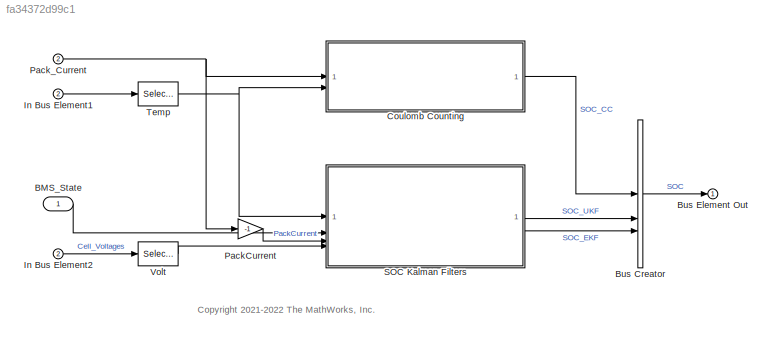
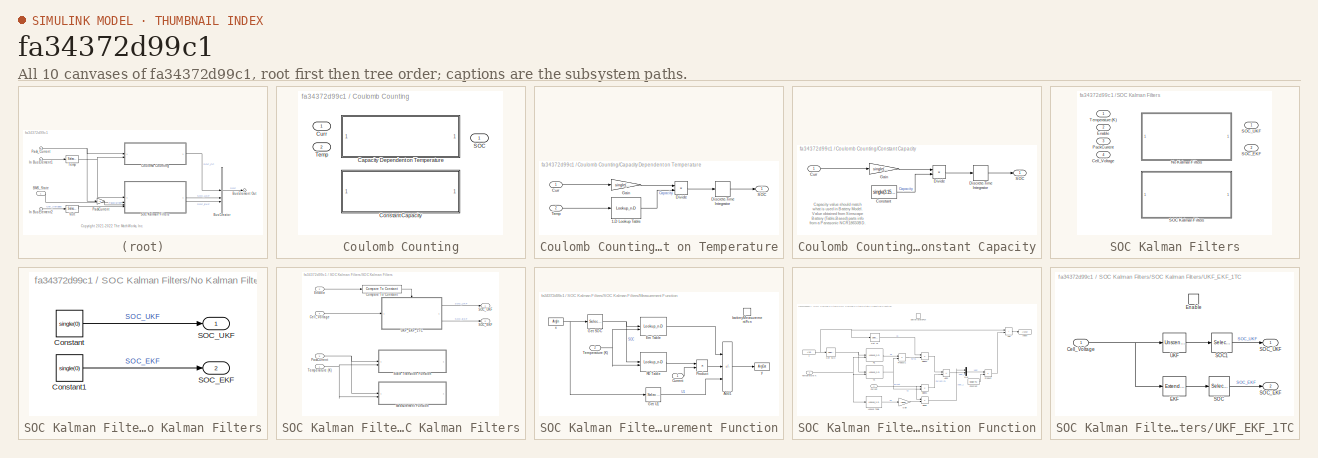
[diagram: thumbnail index - all 10 canvases of the model, root first then tree order]
MODEL slx_fa34372d99c1
KIND model
CONFIG AbsTol = auto
CONFIG EnableMultiTasking = off
CONFIG FixedStep = 0.1
CONFIG MaxStep = auto
CONFIG MinStep = auto
CONFIG RelTol = 1e-3
CONFIG SampleTimeConstraint = Unconstrained
CONFIG SolverName = FixedStepDiscrete
CONFIG StartTime = 0.0
CONFIG StopTime = 10000
WORKSPACE source: mxarray member
WORKSPACE Battery: object (value not decoded)
WORKSPACE Ts: Simulink.Parameter (value not decoded)
BLOCK [Inport] BMS_State
BLOCK [BusCreator] Bus Creator
  DisplayOption = bar
  InheritFromInputs = on
  Inputs = 3
BLOCK [Outport] Bus Element Out
BLOCK [SubSystem] Coulomb Counting
  LabelModeActiveChoice = Constant Capacity
  Variant = on
  VariantControl = SocAlgo==1
  VariantControlMode = label
BLOCK [SubSystem] Coulomb Counting/Capacity Dependent on Temperature
  VariantControl = Capacity Dependent on Temperature
BLOCK [Lookup_n-D] Coulomb Counting/Capacity Dependent on Temperature/1-D Lookup Table
  BreakpointsForDimension1 = single(Battery(1).Temperature_LUT)
  InputPortMap = u0
  InternalRulePriority = Speed
  NumberOfTableDimensions = 1
  RndMeth = Simplest
  Table = single(Battery(1).Capacity_LUT)*PlntBattModNumCellPar
BLOCK [Inport] Coulomb Counting/Capacity Dependent on Temperature/Curr
BLOCK [DiscreteIntegrator] Coulomb Counting/Capacity Dependent on Temperature/Discrete-Time Integrator
  ICPrevOutput = DiscIntNeverNeededParam
  ICPrevScaledInput = DiscIntNeverNeededParam
  InitialCondition = single(PlntBattSocInit)
  InitialConditionSetting = Auto
  LimitOutput = on
  LowerSaturationLimit = 0
  SampleTime = -1
  UpperSaturationLimit = 1
BLOCK [Product] Coulomb Counting/Capacity Dependent on Temperature/Divide
  Inputs = */
  NameLocation = top
BLOCK [Gain] Coulomb Counting/Capacity Dependent on Temperature/Gain
  Gain = single(1/3600)
BLOCK [Outport] Coulomb Counting/Capacity Dependent on Temperature/SOC
  VectorParamsAs1DForOutWhenUnconnected = off
BLOCK [Inport] Coulomb Counting/Capacity Dependent on Temperature/Temp
  Port = 2
BLOCK [SubSystem] Coulomb Counting/Constant Capacity
  VariantControl = Constant Capacity
BLOCK [Constant] Coulomb Counting/Constant Capacity/Constant
  SampleTime = -1
  Value = single(3.153*PlntBattModNumCellPar)
BLOCK [Inport] Coulomb Counting/Constant Capacity/Curr
BLOCK [DiscreteIntegrator] Coulomb Counting/Constant Capacity/Discrete-Time Integrator
  ICPrevOutput = DiscIntNeverNeededParam
  ICPrevScaledInput = DiscIntNeverNeededParam
  InitialCondition = single(PlntBattSocInit)
  InitialConditionSetting = Auto
  LimitOutput = on
  LowerSaturationLimit = 0
  SampleTime = -1
  UpperSaturationLimit = 1
BLOCK [Product] Coulomb Counting/Constant Capacity/Divide
  Inputs = */
  NameLocation = top
BLOCK [Gain] Coulomb Counting/Constant Capacity/Gain
  Gain = single(1/3600)
BLOCK [Outport] Coulomb Counting/Constant Capacity/SOC
  VectorParamsAs1DForOutWhenUnconnected = off
BLOCK [Inport] Coulomb Counting/Curr
BLOCK [Outport] Coulomb Counting/SOC
BLOCK [Inport] Coulomb Counting/Temp
  Port = 2
BLOCK [Inport] In Bus Element1
  Port = 2
BLOCK [Inport] In Bus Element2
  Port = 2
BLOCK [Gain] PackCurrent
  Gain = -1
BLOCK [Inport] Pack_Current
  Port = 2
BLOCK [SubSystem] SOC Kalman Filters
  LabelModeActiveChoice = No Kalman Filters
  Variant = on
  VariantControl = Choice
  VariantControlMode = label
BLOCK [Inport] SOC Kalman Filters/Cell_Voltage
  Port = 4
BLOCK [Inport] SOC Kalman Filters/Enable
  Port = 2
BLOCK [SubSystem] SOC Kalman Filters/No Kalman Filters
  VariantControl = No Kalman Filters
BLOCK [Constant] SOC Kalman Filters/No Kalman Filters/Constant
  SampleTime = -1
  Value = single(0)
BLOCK [Constant] SOC Kalman Filters/No Kalman Filters/Constant1
  SampleTime = -1
  Value = single(0)
BLOCK [Outport] SOC Kalman Filters/No Kalman Filters/SOC_EKF
  Port = 2
BLOCK [Outport] SOC Kalman Filters/No Kalman Filters/SOC_UKF
BLOCK [Inport] SOC Kalman Filters/PackCurrent
  Port = 3
BLOCK [SubSystem] SOC Kalman Filters/SOC Kalman Filters
  InitFcn = if ~license('test', 'identification_toolbox') \n  error(['Block' gcb ' Requires System Identification Toolbox']) \nend \n\nif ~license('test', 'control_toolbox') \n    error(['Block' gcb ' Requires Control System Toolbox']) \nend
  VariantControl = SOC Kalman Filters
BLOCK [Inport] SOC Kalman Filters/SOC Kalman Filters/Cell_Voltage
  Port = 4
BLOCK [Reference] SOC Kalman Filters/SOC Kalman Filters/Compare To Constant  REF=simulink/Logic and Bit
Operations/Compare
To Constant
  SourceBlock = simulink/Logic and Bit\nOperations/Compare\nTo Constant
  SourceType = Compare To Constant
BLOCK [Inport] SOC Kalman Filters/SOC Kalman Filters/Enable
  Port = 2
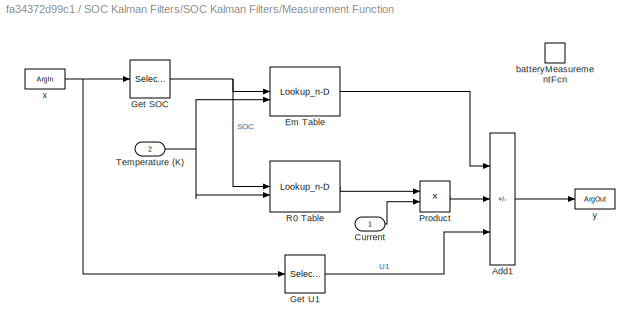
BLOCK [SubSystem] SOC Kalman Filters/SOC Kalman Filters/Measurement Function
  TreatAsAtomicUnit = on
BLOCK [Sum] SOC Kalman Filters/SOC Kalman Filters/Measurement Function/Add1
  IconShape = rectangular
  Inputs = +--
BLOCK [Inport] SOC Kalman Filters/SOC Kalman Filters/Measurement Function/Current
BLOCK [Lookup_n-D] SOC Kalman Filters/SOC Kalman Filters/Measurement Function/Em Table
  BeginIndexSearchUsingPreviousIndexResult = on
  BreakpointsForDimension1 = Battery.SOC_LUT
  BreakpointsForDimension2 = Battery.Temperature_LUT
  ExtrapMethod = Clip
  InputPortMap = u0,u1
  InternalRulePriority = Speed
  RndMeth = Simplest
  Table = Battery.Em_LUT
BLOCK [Selector] SOC Kalman Filters/SOC Kalman Filters/Measurement Function/Get SOC
  IndexOptions = Index vector (dialog)
  Indices = [1]
  InputPortWidth = 2
  OutputSizes = 1
BLOCK [Selector] SOC Kalman Filters/SOC Kalman Filters/Measurement Function/Get U1
  IndexOptions = Index vector (dialog)
  Indices = 2
  InputPortWidth = 2
  OutputSizes = 1
BLOCK [Product] SOC Kalman Filters/SOC Kalman Filters/Measurement Function/Product
BLOCK [Lookup_n-D] SOC Kalman Filters/SOC Kalman Filters/Measurement Function/R0 Table
  BeginIndexSearchUsingPreviousIndexResult = on
  BreakpointsForDimension1 = Battery.SOC_LUT
  BreakpointsForDimension2 = Battery.Temperature_LUT
  ExtrapMethod = Clip
  InputPortMap = u0,u1
  InternalRulePriority = Speed
  RndMeth = Simplest
  Table = Battery.R0_LUT
BLOCK [Inport] SOC Kalman Filters/SOC Kalman Filters/Measurement Function/Temperature (K)
  Port = 2
BLOCK [TriggerPort] SOC Kalman Filters/SOC Kalman Filters/Measurement Function/batteryMeasurementFcn
  FunctionName = batteryMeasurementFcn
  IsSimulinkFunction = on
  StatesWhenEnabling = held
  TriggerType = function-call
  VariantControl = Variant
BLOCK [ArgIn] SOC Kalman Filters/SOC Kalman Filters/Measurement Function/x
  ArgumentName = x
  DisableCoverage = on
  OutDataTypeStr = single
  PortDimensions = 2
BLOCK [ArgOut] SOC Kalman Filters/SOC Kalman Filters/Measurement Function/y
  ArgumentName = y
  DisableCoverage = on
  OutDataTypeStr = single
BLOCK [Inport] SOC Kalman Filters/SOC Kalman Filters/PackCurrent
  Port = 3
BLOCK [Outport] SOC Kalman Filters/SOC Kalman Filters/SOC_EKF
  Port = 2
BLOCK [Outport] SOC Kalman Filters/SOC Kalman Filters/SOC_UKF
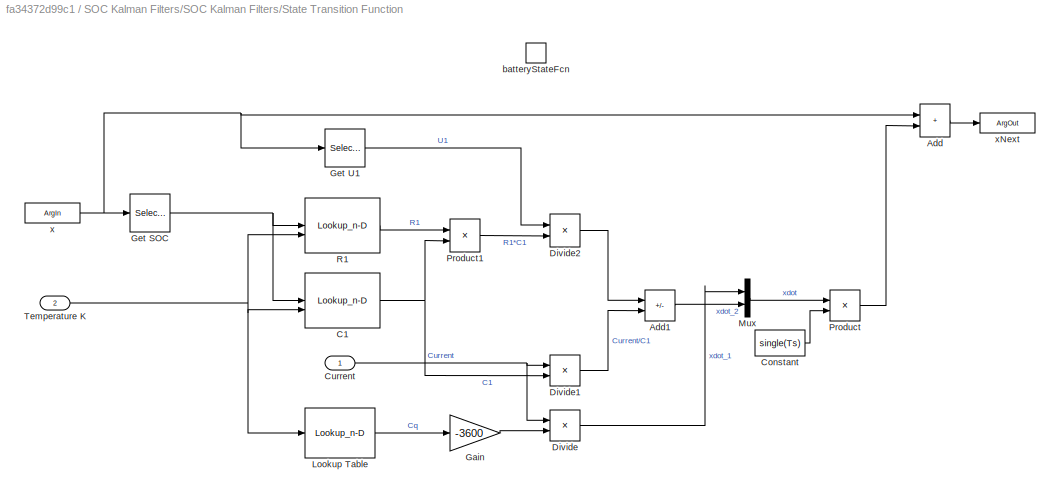
BLOCK [SubSystem] SOC Kalman Filters/SOC Kalman Filters/State Transition Function
  TreatAsAtomicUnit = on
BLOCK [Sum] SOC Kalman Filters/SOC Kalman Filters/State Transition Function/Add
  IconShape = rectangular
BLOCK [Sum] SOC Kalman Filters/SOC Kalman Filters/State Transition Function/Add1
  IconShape = rectangular
  Inputs = -+
BLOCK [Lookup_n-D] SOC Kalman Filters/SOC Kalman Filters/State Transition Function/C1
  BeginIndexSearchUsingPreviousIndexResult = on
  BreakpointsForDimension1 = Battery.SOC_LUT
  BreakpointsForDimension2 = Battery.Temperature_LUT
  ExtrapMethod = Clip
  InputPortMap = u0,u1
  InternalRulePriority = Speed
  RndMeth = Simplest
  Table = Battery.C1_LUT
BLOCK [Constant] SOC Kalman Filters/SOC Kalman Filters/State Transition Function/Constant
  OutDataTypeStr = single
  Value = single(Ts)
BLOCK [Inport] SOC Kalman Filters/SOC Kalman Filters/State Transition Function/Current
BLOCK [Product] SOC Kalman Filters/SOC Kalman Filters/State Transition Function/Divide
  Inputs = */
BLOCK [Product] SOC Kalman Filters/SOC Kalman Filters/State Transition Function/Divide1
  Inputs = */
BLOCK [Product] SOC Kalman Filters/SOC Kalman Filters/State Transition Function/Divide2
  Inputs = */
BLOCK [Gain] SOC Kalman Filters/SOC Kalman Filters/State Transition Function/Gain
  Gain = -3600
BLOCK [Selector] SOC Kalman Filters/SOC Kalman Filters/State Transition Function/Get SOC
  IndexOptions = Index vector (dialog)
  Indices = 1
  InputPortWidth = 2
  OutputSizes = 1
BLOCK [Selector] SOC Kalman Filters/SOC Kalman Filters/State Transition Function/Get U1
  IndexOptions = Index vector (dialog)
  Indices = 2
  InputPortWidth = 2
  OutputSizes = 1
BLOCK [Lookup_n-D] SOC Kalman Filters/SOC Kalman Filters/State Transition Function/Lookup Table
  BeginIndexSearchUsingPreviousIndexResult = on
  BreakpointsForDimension1 = Battery.Temperature_LUT
  InputPortMap = u0
  InternalRulePriority = Speed
  NumberOfTableDimensions = 1
  RndMeth = Simplest
  Table = Battery.Capacity_LUT
BLOCK [Mux] SOC Kalman Filters/SOC Kalman Filters/State Transition Function/Mux
  DisplayOption = bar
  Inputs = 2
BLOCK [Product] SOC Kalman Filters/SOC Kalman Filters/State Transition Function/Product
  OutDataTypeStr = single
BLOCK [Product] SOC Kalman Filters/SOC Kalman Filters/State Transition Function/Product1
BLOCK [Lookup_n-D] SOC Kalman Filters/SOC Kalman Filters/State Transition Function/R1
  BeginIndexSearchUsingPreviousIndexResult = on
  BreakpointsForDimension1 = Battery.SOC_LUT
  BreakpointsForDimension2 = Battery.Temperature_LUT
  ExtrapMethod = Clip
  InputPortMap = u0,u1
  InternalRulePriority = Speed
  RndMeth = Simplest
  Table = Battery.R1_LUT
BLOCK [Inport] SOC Kalman Filters/SOC Kalman Filters/State Transition Function/Temperature K
  Port = 2
BLOCK [TriggerPort] SOC Kalman Filters/SOC Kalman Filters/State Transition Function/batteryStateFcn
  FunctionName = batteryStateFcn
  IsSimulinkFunction = on
  StatesWhenEnabling = held
  TriggerType = function-call
  VariantControl = Variant
BLOCK [ArgIn] SOC Kalman Filters/SOC Kalman Filters/State Transition Function/x
  ArgumentName = x
  DisableCoverage = on
  OutDataTypeStr = single
  PortDimensions = 2
BLOCK [ArgOut] SOC Kalman Filters/SOC Kalman Filters/State Transition Function/xNext
  ArgumentName = xNext
  DisableCoverage = on
  OutDataTypeStr = single
  PortDimensions = 2
BLOCK [Inport] SOC Kalman Filters/SOC Kalman Filters/Temperature (K)
BLOCK [SubSystem] SOC Kalman Filters/SOC Kalman Filters/UKF_EKF_1TC
  VariantControl = CellType==1
BLOCK [Inport] SOC Kalman Filters/SOC Kalman Filters/UKF_EKF_1TC/Cell_Voltage
BLOCK [Reference] SOC Kalman Filters/SOC Kalman Filters/UKF_EKF_1TC/EKF  REF=sharedTrackingLibrary/Extended Kalman Filter
  SourceBlock = sharedTrackingLibrary/Extended Kalman Filter
  SourceType = Extended Kalman Filter
BLOCK [EnablePort] SOC Kalman Filters/SOC Kalman Filters/UKF_EKF_1TC/Enable
BLOCK [Selector] SOC Kalman Filters/SOC Kalman Filters/UKF_EKF_1TC/SOC
  IndexOptions = Index vector (dialog)
  Indices = 1
  InputPortWidth = 2
  OutputSizes = 1
BLOCK [Selector] SOC Kalman Filters/SOC Kalman Filters/UKF_EKF_1TC/SOC1
  IndexOptions = Index vector (dialog)
  Indices = 1
  InputPortWidth = 2
  OutputSizes = 1
BLOCK [Outport] SOC Kalman Filters/SOC Kalman Filters/UKF_EKF_1TC/SOC_EKF
  Port = 2
  VectorParamsAs1DForOutWhenUnconnected = off
BLOCK [Outport] SOC Kalman Filters/SOC Kalman Filters/UKF_EKF_1TC/SOC_UKF
  VectorParamsAs1DForOutWhenUnconnected = off
BLOCK [Reference] SOC Kalman Filters/SOC Kalman Filters/UKF_EKF_1TC/UKF  REF=sharedTrackingLibrary/Unscented Kalman Filter
  SourceBlock = sharedTrackingLibrary/Unscented Kalman Filter
  SourceType = Unscented Kalman Filter
BLOCK [Outport] SOC Kalman Filters/SOC_EKF
  Port = 2
BLOCK [Outport] SOC Kalman Filters/SOC_UKF
BLOCK [Inport] SOC Kalman Filters/Temperature (K)
BLOCK [Selector] Temp
  IndexOptions = Index vector (dialog)
  Indices = 1
  InputPortWidth = PlntBattModNumCellSer*PlntBattNumMod
  OutputSizes = 1
BLOCK [Selector] Volt
  IndexOptions = Index vector (dialog)
  Indices = 1
  InputPortWidth = PlntBattModNumCellSer*PlntBattNumMod
  OutputSizes = 1
ANNOTATION (root): <copyright redacted>
ANNOTATION Coulomb Counting/Constant Capacity: Capacity value should match what is used in Battery Model. Value obtained from Simscape Battery (Table-Based) parts info from a Panasonic NCR18650BD.
LINE BMS_State:1 -> SOC Kalman Filters:2
LINE Bus Creator:1 -> Bus Element Out:1
LINE Coulomb Counting/Capacity Dependent on Temperature/1-D Lookup Table:1 -> Coulomb Counting/Capacity Dependent on Temperature/Divide:2
LINE Coulomb Counting/Capacity Dependent on Temperature/Curr:1 -> Coulomb Counting/Capacity Dependent on Temperature/Gain:1
LINE Coulomb Counting/Capacity Dependent on Temperature/Discrete-Time Integrator:1 -> Coulomb Counting/Capacity Dependent on Temperature/SOC:1
LINE Coulomb Counting/Capacity Dependent on Temperature/Divide:1 -> Coulomb Counting/Capacity Dependent on Temperature/Discrete-Time Integrator:1
LINE Coulomb Counting/Capacity Dependent on Temperature/Gain:1 -> Coulomb Counting/Capacity Dependent on Temperature/Divide:1
LINE Coulomb Counting/Capacity Dependent on Temperature/Temp:1 -> Coulomb Counting/Capacity Dependent on Temperature/1-D Lookup Table:1
LINE Coulomb Counting/Constant Capacity/Constant:1 -> Coulomb Counting/Constant Capacity/Divide:2
LINE Coulomb Counting/Constant Capacity/Curr:1 -> Coulomb Counting/Constant Capacity/Gain:1
LINE Coulomb Counting/Constant Capacity/Discrete-Time Integrator:1 -> Coulomb Counting/Constant Capacity/SOC:1
LINE Coulomb Counting/Constant Capacity/Divide:1 -> Coulomb Counting/Constant Capacity/Discrete-Time Integrator:1
LINE Coulomb Counting/Constant Capacity/Gain:1 -> Coulomb Counting/Constant Capacity/Divide:1
LINE Coulomb Counting:1 -> Bus Creator:1
LINE In Bus Element1:1 -> Temp:1
LINE In Bus Element2:1 -> Volt:1
LINE PackCurrent:1 -> SOC Kalman Filters:3
NET Pack_Current:1 -> Coulomb Counting:1, PackCurrent:1
LINE SOC Kalman Filters/No Kalman Filters/Constant1:1 -> SOC Kalman Filters/No Kalman Filters/SOC_EKF:1
LINE SOC Kalman Filters/No Kalman Filters/Constant:1 -> SOC Kalman Filters/No Kalman Filters/SOC_UKF:1
LINE SOC Kalman Filters/SOC Kalman Filters/Cell_Voltage:1 -> SOC Kalman Filters/SOC Kalman Filters/UKF_EKF_1TC:1
LINE SOC Kalman Filters/SOC Kalman Filters/Compare To Constant:1 -> SOC Kalman Filters/SOC Kalman Filters/UKF_EKF_1TC:enable
LINE SOC Kalman Filters/SOC Kalman Filters/Enable:1 -> SOC Kalman Filters/SOC Kalman Filters/Compare To Constant:1
LINE SOC Kalman Filters/SOC Kalman Filters/Measurement Function/Add1:1 -> SOC Kalman Filters/SOC Kalman Filters/Measurement Function/y:1
LINE SOC Kalman Filters/SOC Kalman Filters/Measurement Function/Current:1 -> SOC Kalman Filters/SOC Kalman Filters/Measurement Function/Product:2
LINE SOC Kalman Filters/SOC Kalman Filters/Measurement Function/Em Table:1 -> SOC Kalman Filters/SOC Kalman Filters/Measurement Function/Add1:1
NET SOC Kalman Filters/SOC Kalman Filters/Measurement Function/Get SOC:1 -> SOC Kalman Filters/SOC Kalman Filters/Measurement Function/Em Table:1, SOC Kalman Filters/SOC Kalman Filters/Measurement Function/R0 Table:1
LINE SOC Kalman Filters/SOC Kalman Filters/Measurement Function/Get U1:1 -> SOC Kalman Filters/SOC Kalman Filters/Measurement Function/Add1:3
LINE SOC Kalman Filters/SOC Kalman Filters/Measurement Function/Product:1 -> SOC Kalman Filters/SOC Kalman Filters/Measurement Function/Add1:2
LINE SOC Kalman Filters/SOC Kalman Filters/Measurement Function/R0 Table:1 -> SOC Kalman Filters/SOC Kalman Filters/Measurement Function/Product:1
NET SOC Kalman Filters/SOC Kalman Filters/Measurement Function/Temperature (K):1 -> SOC Kalman Filters/SOC Kalman Filters/Measurement Function/Em Table:2, SOC Kalman Filters/SOC Kalman Filters/Measurement Function/R0 Table:2
NET SOC Kalman Filters/SOC Kalman Filters/Measurement Function/x:1 -> SOC Kalman Filters/SOC Kalman Filters/Measurement Function/Get SOC:1, SOC Kalman Filters/SOC Kalman Filters/Measurement Function/Get U1:1
NET SOC Kalman Filters/SOC Kalman Filters/PackCurrent:1 -> SOC Kalman Filters/SOC Kalman Filters/Measurement Function:1, SOC Kalman Filters/SOC Kalman Filters/State Transition Function:1
LINE SOC Kalman Filters/SOC Kalman Filters/State Transition Function/Add1:1 -> SOC Kalman Filters/SOC Kalman Filters/State Transition Function/Mux:2
LINE SOC Kalman Filters/SOC Kalman Filters/State Transition Function/Add:1 -> SOC Kalman Filters/SOC Kalman Filters/State Transition Function/xNext:1
NET SOC Kalman Filters/SOC Kalman Filters/State Transition Function/C1:1 -> SOC Kalman Filters/SOC Kalman Filters/State Transition Function/Divide1:2, SOC Kalman Filters/SOC Kalman Filters/State Transition Function/Product1:2
LINE SOC Kalman Filters/SOC Kalman Filters/State Transition Function/Constant:1 -> SOC Kalman Filters/SOC Kalman Filters/State Transition Function/Product:2
NET SOC Kalman Filters/SOC Kalman Filters/State Transition Function/Current:1 -> SOC Kalman Filters/SOC Kalman Filters/State Transition Function/Divide1:1, SOC Kalman Filters/SOC Kalman Filters/State Transition Function/Divide:1
LINE SOC Kalman Filters/SOC Kalman Filters/State Transition Function/Divide1:1 -> SOC Kalman Filters/SOC Kalman Filters/State Transition Function/Add1:2
LINE SOC Kalman Filters/SOC Kalman Filters/State Transition Function/Divide2:1 -> SOC Kalman Filters/SOC Kalman Filters/State Transition Function/Add1:1
LINE SOC Kalman Filters/SOC Kalman Filters/State Transition Function/Divide:1 -> SOC Kalman Filters/SOC Kalman Filters/State Transition Function/Mux:1
LINE SOC Kalman Filters/SOC Kalman Filters/State Transition Function/Gain:1 -> SOC Kalman Filters/SOC Kalman Filters/State Transition Function/Divide:2
NET SOC Kalman Filters/SOC Kalman Filters/State Transition Function/Get SOC:1 -> SOC Kalman Filters/SOC Kalman Filters/State Transition Function/C1:1, SOC Kalman Filters/SOC Kalman Filters/State Transition Function/R1:1
LINE SOC Kalman Filters/SOC Kalman Filters/State Transition Function/Get U1:1 -> SOC Kalman Filters/SOC Kalman Filters/State Transition Function/Divide2:1
LINE SOC Kalman Filters/SOC Kalman Filters/State Transition Function/Lookup Table:1 -> SOC Kalman Filters/SOC Kalman Filters/State Transition Function/Gain:1
LINE SOC Kalman Filters/SOC Kalman Filters/State Transition Function/Mux:1 -> SOC Kalman Filters/SOC Kalman Filters/State Transition Function/Product:1
LINE SOC Kalman Filters/SOC Kalman Filters/State Transition Function/Product1:1 -> SOC Kalman Filters/SOC Kalman Filters/State Transition Function/Divide2:2
LINE SOC Kalman Filters/SOC Kalman Filters/State Transition Function/Product:1 -> SOC Kalman Filters/SOC Kalman Filters/State Transition Function/Add:2
LINE SOC Kalman Filters/SOC Kalman Filters/State Transition Function/R1:1 -> SOC Kalman Filters/SOC Kalman Filters/State Transition Function/Product1:1
NET SOC Kalman Filters/SOC Kalman Filters/State Transition Function/Temperature K:1 -> SOC Kalman Filters/SOC Kalman Filters/State Transition Function/C1:2, SOC Kalman Filters/SOC Kalman Filters/State Transition Function/Lookup Table:1, SOC Kalman Filters/SOC Kalman Filters/State Transition Function/R1:2
NET SOC Kalman Filters/SOC Kalman Filters/State Transition Function/x:1 -> SOC Kalman Filters/SOC Kalman Filters/State Transition Function/Add:1, SOC Kalman Filters/SOC Kalman Filters/State Transition Function/Get SOC:1, SOC Kalman Filters/SOC Kalman Filters/State Transition Function/Get U1:1
NET SOC Kalman Filters/SOC Kalman Filters/Temperature (K):1 -> SOC Kalman Filters/SOC Kalman Filters/Measurement Function:2, SOC Kalman Filters/SOC Kalman Filters/State Transition Function:2
NET SOC Kalman Filters/SOC Kalman Filters/UKF_EKF_1TC/Cell_Voltage:1 -> SOC Kalman Filters/SOC Kalman Filters/UKF_EKF_1TC/EKF:1, SOC Kalman Filters/SOC Kalman Filters/UKF_EKF_1TC/UKF:1
LINE SOC Kalman Filters/SOC Kalman Filters/UKF_EKF_1TC/EKF:1 -> SOC Kalman Filters/SOC Kalman Filters/UKF_EKF_1TC/SOC:1
LINE SOC Kalman Filters/SOC Kalman Filters/UKF_EKF_1TC/SOC1:1 -> SOC Kalman Filters/SOC Kalman Filters/UKF_EKF_1TC/SOC_UKF:1
LINE SOC Kalman Filters/SOC Kalman Filters/UKF_EKF_1TC/SOC:1 -> SOC Kalman Filters/SOC Kalman Filters/UKF_EKF_1TC/SOC_EKF:1
LINE SOC Kalman Filters/SOC Kalman Filters/UKF_EKF_1TC/UKF:1 -> SOC Kalman Filters/SOC Kalman Filters/UKF_EKF_1TC/SOC1:1
LINE SOC Kalman Filters/SOC Kalman Filters/UKF_EKF_1TC:1 -> SOC Kalman Filters/SOC Kalman Filters/SOC_UKF:1
LINE SOC Kalman Filters/SOC Kalman Filters/UKF_EKF_1TC:2 -> SOC Kalman Filters/SOC Kalman Filters/SOC_EKF:1
LINE SOC Kalman Filters:1 -> Bus Creator:2
LINE SOC Kalman Filters:2 -> Bus Creator:3
NET Temp:1 -> Coulomb Counting:2, SOC Kalman Filters:1
LINE Volt:1 -> SOC Kalman Filters:4
note: NET lines group one-source signal fan-out (src -> all destinations, sorted); 1:1 wires keep LINE
